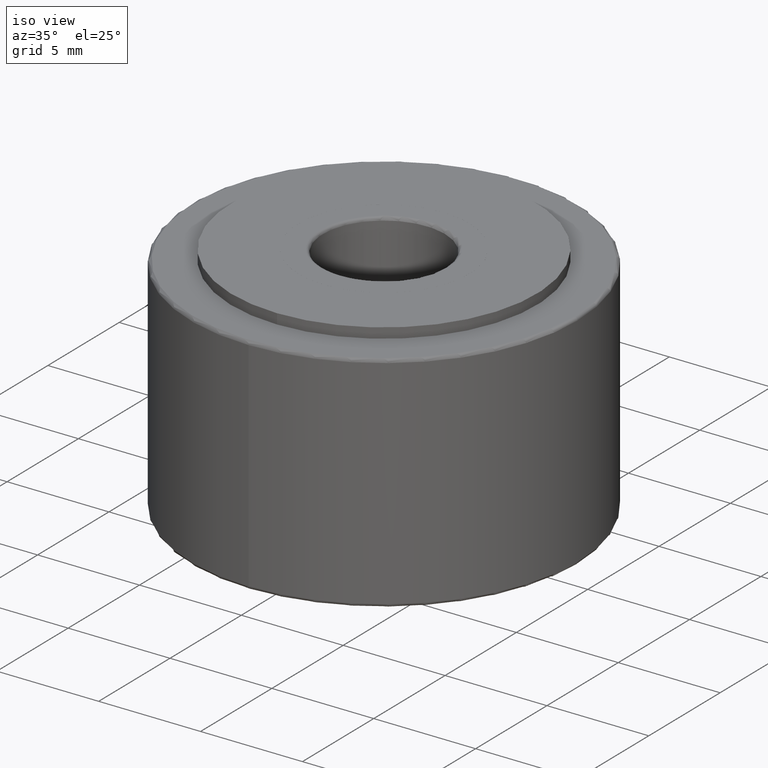
[diagram: clean part render]
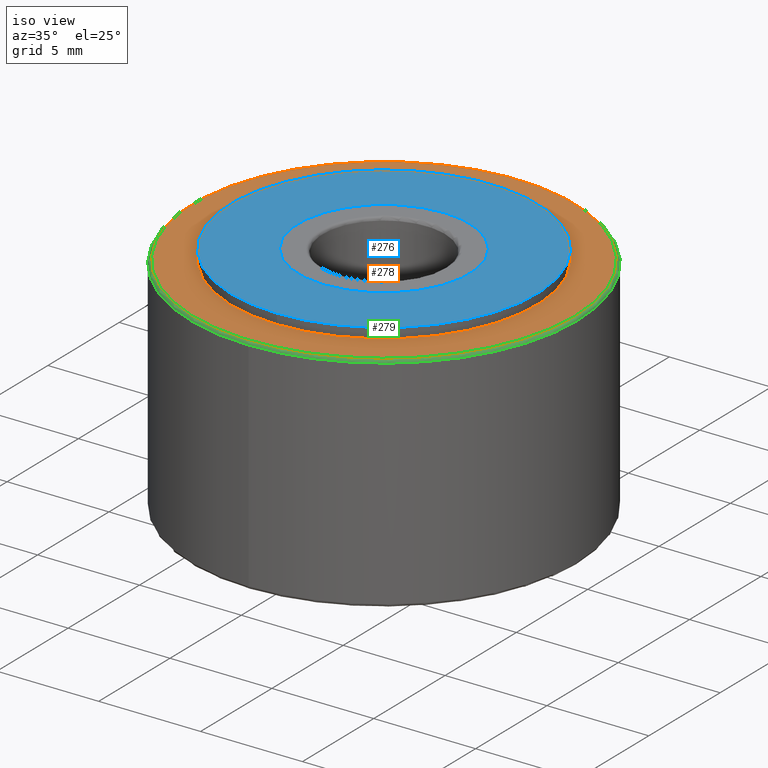
[diagram: same view with three faces highlighted in distinct colors, each labeled with its STEP entity id]
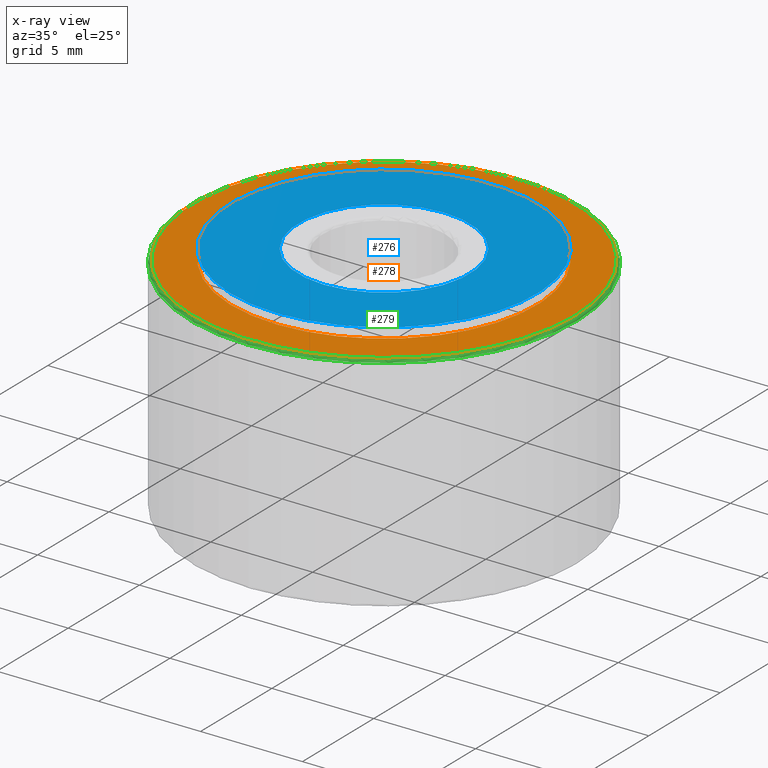
[diagram: x-ray of the same camera — body ghosted, the three highlighted faces saturated]
A machine part, iso view with three faces highlighted in distinct colors.
The next image is the same camera in x-ray (body ghosted, the three faces saturated) — at least one of them is partly hidden behind the body in this view.
Their STEP definitions:

[orange] entity #278 — the highlighted planar face has unit normal (0, -0, 1).
#46=FACE_BOUND('',#90,.T.);
#54=PLANE('',#331);
#66=FACE_OUTER_BOUND('',#89,.T.);
#89=EDGE_LOOP('',(#218));
#90=EDGE_LOOP('',(#219));
#116=CIRCLE('',#330,7.5);
#117=CIRCLE('',#332,9.35);
#143=VERTEX_POINT('',#495);
#144=VERTEX_POINT('',#499);
#170=EDGE_CURVE('',#143,#143,#116,.T.);
#172=EDGE_CURVE('',#144,#144,#117,.T.);
#218=ORIENTED_EDGE('',*,*,#172,.F.);
#219=ORIENTED_EDGE('',*,*,#170,.T.);
#278=ADVANCED_FACE('',(#66,#46),#54,.T.);
#330=AXIS2_PLACEMENT_3D('',#496,#398,#399);
#331=AXIS2_PLACEMENT_3D('',#498,#401,#402);
#332=AXIS2_PLACEMENT_3D('',#500,#403,#404);
#398=DIRECTION('center_axis',(0.,3.06161699786839E-16,-1.));
#399=DIRECTION('ref_axis',(1.,0.,0.));
#401=DIRECTION('center_axis',(0.,-3.06161699786839E-16,1.));
#402=DIRECTION('ref_axis',(1.,0.,0.));
#403=DIRECTION('center_axis',(0.,3.06161699786839E-16,-1.));
#404=DIRECTION('ref_axis',(1.,0.,0.));
#495=CARTESIAN_POINT('',(-9.18485099360515E-16,-7.5,5.5));
#496=CARTESIAN_POINT('Origin',(0.,-2.82697015715792E-15,5.5));
#498=CARTESIAN_POINT('Origin',(0.,9.35,5.5));
#499=CARTESIAN_POINT('',(9.35,-3.97201491436069E-15,5.5));
#500=CARTESIAN_POINT('Origin',(0.,-2.82697015715792E-15,5.5));

[blue] entity #276 — the highlighted planar face has unit normal (0, -0, 1).
#45=FACE_BOUND('',#87,.T.);
#53=PLANE('',#327);
#64=FACE_OUTER_BOUND('',#86,.T.);
#86=EDGE_LOOP('',(#212));
#87=EDGE_LOOP('',(#213));
#114=CIRCLE('',#326,4.201);
#115=CIRCLE('',#328,7.5);
#141=VERTEX_POINT('',#488);
#142=VERTEX_POINT('',#492);
#168=EDGE_CURVE('',#141,#141,#114,.T.);
#169=EDGE_CURVE('',#142,#142,#115,.T.);
#212=ORIENTED_EDGE('',*,*,#169,.F.);
#213=ORIENTED_EDGE('',*,*,#168,.T.);
#276=ADVANCED_FACE('',(#64,#45),#53,.T.);
#326=AXIS2_PLACEMENT_3D('',#490,#390,#391);
#327=AXIS2_PLACEMENT_3D('',#491,#392,#393);
#328=AXIS2_PLACEMENT_3D('',#493,#394,#395);
#390=DIRECTION('center_axis',(0.,3.06161699786839E-16,-1.));
#391=DIRECTION('ref_axis',(1.,0.,0.));
#392=DIRECTION('center_axis',(0.,-3.06161699786839E-16,1.));
#393=DIRECTION('ref_axis',(1.,0.,0.));
#394=DIRECTION('center_axis',(0.,3.06161699786839E-16,-1.));
#395=DIRECTION('ref_axis',(1.,0.,0.));
#488=CARTESIAN_POINT('',(5.14474120321803E-16,-4.201,6.));
#490=CARTESIAN_POINT('Origin',(0.,-2.98005100705133E-15,6.));
#491=CARTESIAN_POINT('Origin',(0.,7.5,6.));
#492=CARTESIAN_POINT('',(-9.18485099360515E-16,-7.5,6.));
#493=CARTESIAN_POINT('Origin',(0.,-2.98005100705133E-15,6.));

[green] entity #279 — the highlighted toroidal blend (fillet) surface has major radius 9.35 mm and minor (blend) radius 0.15 mm.
#67=FACE_OUTER_BOUND('',#91,.T.);
#91=EDGE_LOOP('',(#220,#221,#222,#223,#224));
#117=CIRCLE('',#332,9.35);
#118=CIRCLE('',#334,9.5);
#119=CIRCLE('',#335,9.5);
#120=CIRCLE('',#336,0.15);
#144=VERTEX_POINT('',#499);
#145=VERTEX_POINT('',#502);
#146=VERTEX_POINT('',#503);
#172=EDGE_CURVE('',#144,#144,#117,.T.);
#173=EDGE_CURVE('',#145,#146,#118,.T.);
#174=EDGE_CURVE('',#146,#145,#119,.T.);
#175=EDGE_CURVE('',#146,#144,#120,.T.);
#220=ORIENTED_EDGE('',*,*,#173,.F.);
#221=ORIENTED_EDGE('',*,*,#174,.F.);
#222=ORIENTED_EDGE('',*,*,#175,.T.);
#223=ORIENTED_EDGE('',*,*,#172,.T.);
#224=ORIENTED_EDGE('',*,*,#175,.F.);
#268=TOROIDAL_SURFACE('',#333,9.35,0.15);
#279=ADVANCED_FACE('',(#67),#268,.T.);
#332=AXIS2_PLACEMENT_3D('',#500,#403,#404);
#333=AXIS2_PLACEMENT_3D('',#501,#405,#406);
#334=AXIS2_PLACEMENT_3D('',#504,#407,#408);
#335=AXIS2_PLACEMENT_3D('',#505,#409,#410);
#336=AXIS2_PLACEMENT_3D('',#506,#411,#412);
#403=DIRECTION('center_axis',(0.,3.06161699786839E-16,-1.));
#404=DIRECTION('ref_axis',(1.,0.,0.));
#405=DIRECTION('center_axis',(0.,3.06161699786839E-16,-1.));
#406=DIRECTION('ref_axis',(-1.,0.,0.));
#407=DIRECTION('center_axis',(0.,3.06161699786839E-16,-1.));
#408=DIRECTION('ref_axis',(1.,0.,0.));
#409=DIRECTION('center_axis',(0.,3.06161699786839E-16,-1.));
#410=DIRECTION('ref_axis',(1.,0.,0.));
#411=DIRECTION('center_axis',(-1.22464679914735E-16,-1.,-3.06161699786839E-16));
#412=DIRECTION('ref_axis',(1.,-1.22464679914735E-16,0.));
#499=CARTESIAN_POINT('',(9.35,-3.97201491436069E-15,5.5));
#500=CARTESIAN_POINT('Origin',(0.,-2.82697015715792E-15,5.5));
#501=CARTESIAN_POINT('Origin',(0.,-2.78104590218989E-15,5.35));
#502=CARTESIAN_POINT('',(-1.16341445918999E-15,-9.5,5.35));
#503=CARTESIAN_POINT('',(9.5,-3.94446036137988E-15,5.35));
#504=CARTESIAN_POINT('Origin',(0.,-2.78104590218989E-15,5.35));
#505=CARTESIAN_POINT('Origin',(0.,-2.78104590218989E-15,5.35));
#506=CARTESIAN_POINT('Origin',(9.35,-3.92609065939266E-15,5.35));